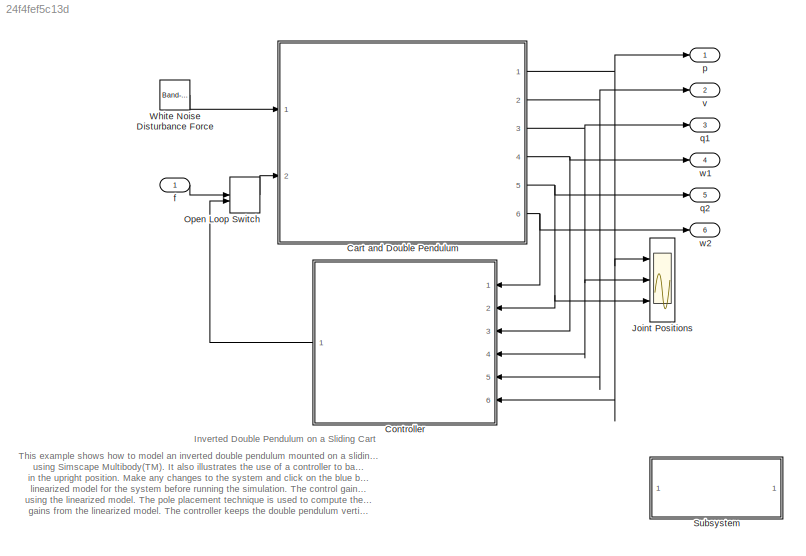
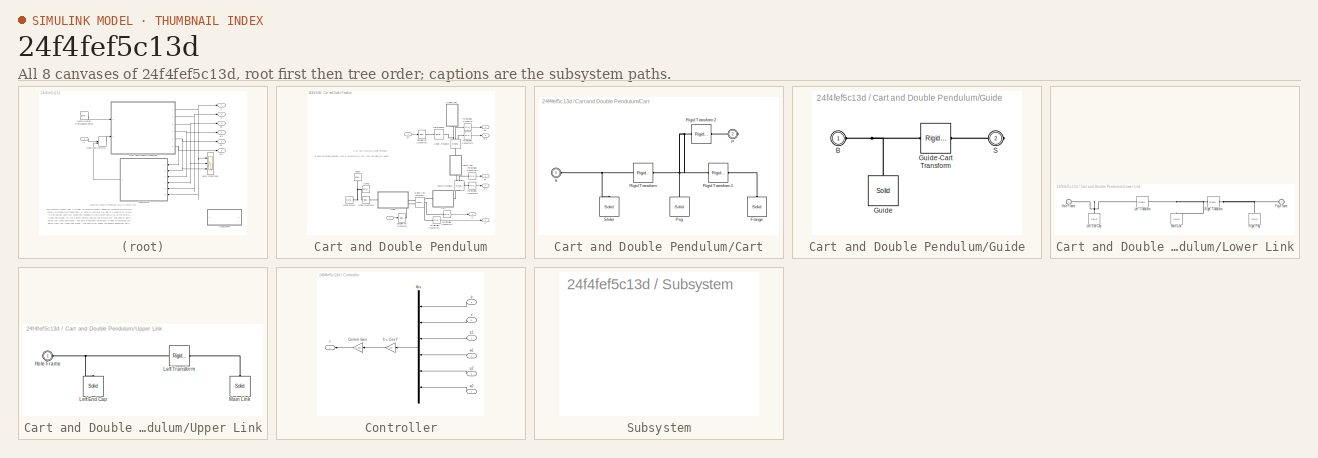
[diagram: thumbnail index - all 8 canvases of the model, root first then tree order]
MODEL slx_24f4fef5c13d
KIND model
CONFIG AbsTol = 1e-6
CONFIG EnableMultiTasking = on
CONFIG FixedStep = auto
CONFIG MaxStep = 0.01
CONFIG MinStep = auto
CONFIG RelTol = 1e-6
CONFIG SampleTimeConstraint = Unconstrained
CONFIG Solver = ode45
CONFIG SolverName = ode45
CONFIG StartTime = 0.0
CONFIG StopTime = 10
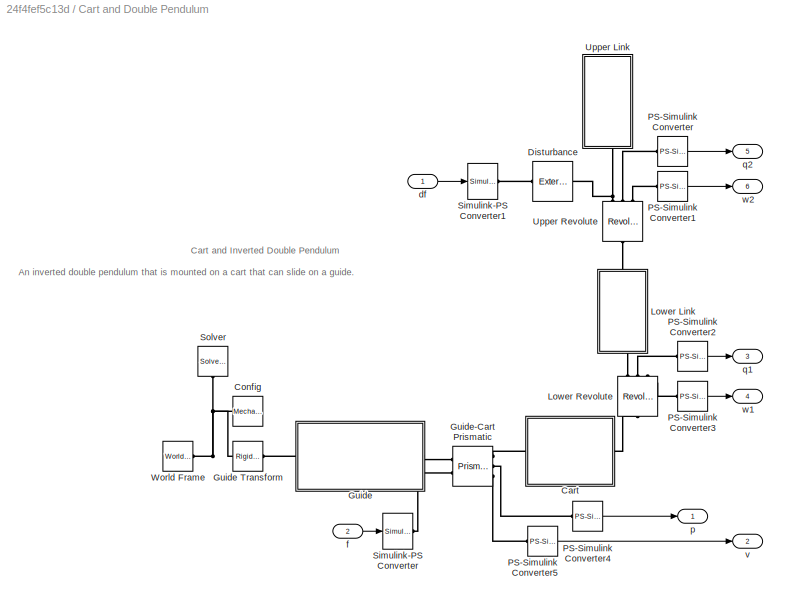
BLOCK [SubSystem] Cart and Double Pendulum
  Ports = [2, 6]
  RequestExecContextInheritance = off
BLOCK [SubSystem] Cart and Double Pendulum/Cart
  Ports = [0, 0, 0, 0, 0, 1, 1]
  RequestExecContextInheritance = off
BLOCK [Reference] Cart and Double Pendulum/Cart/Flange  REF=sm_lib/Body Elements/Solid
  Ports = [0, 0, 0, 0, 0, 0, 1]
  SourceBlock = sm_lib/Body Elements/Solid
  SourceProductBaseCode = MS
  SourceType = Cylindrical Solid
BLOCK [PMIOPort] Cart and Double Pendulum/Cart/P
  Port = 2
  Side = Right
BLOCK [Reference] Cart and Double Pendulum/Cart/Peg  REF=sm_lib/Body Elements/Solid
  Ports = [0, 0, 0, 0, 0, 0, 1]
  SourceBlock = sm_lib/Body Elements/Solid
  SourceProductBaseCode = MS
  SourceType = Cylindrical Solid
BLOCK [Reference] Cart and Double Pendulum/Cart/Rigid Transform  REF=sm_lib/Frames and
Transforms/Rigid
Transform
  Ports = [0, 0, 0, 0, 0, 1, 1]
  SourceBlock = sm_lib/Frames and\nTransforms/Rigid\nTransform
  SourceProductBaseCode = MS
  SourceType = Rigid\nTransform
BLOCK [Reference] Cart and Double Pendulum/Cart/Rigid Transform1  REF=sm_lib/Frames and
Transforms/Rigid
Transform
  Ports = [0, 0, 0, 0, 0, 1, 1]
  SourceBlock = sm_lib/Frames and\nTransforms/Rigid\nTransform
  SourceProductBaseCode = MS
  SourceType = Rigid\nTransform
BLOCK [Reference] Cart and Double Pendulum/Cart/Rigid Transform2  REF=sm_lib/Frames and
Transforms/Rigid
Transform
  Ports = [0, 0, 0, 0, 0, 1, 1]
  SourceBlock = sm_lib/Frames and\nTransforms/Rigid\nTransform
  SourceProductBaseCode = MS
  SourceType = Rigid\nTransform
BLOCK [PMIOPort] Cart and Double Pendulum/Cart/S
  Side = Left
BLOCK [Reference] Cart and Double Pendulum/Cart/Slider  REF=sm_lib/Body Elements/Solid
  Ports = [0, 0, 0, 0, 0, 0, 1]
  SourceBlock = sm_lib/Body Elements/Solid
  SourceProductBaseCode = MS
  SourceType = Extruded Solid
BLOCK [Reference] Cart and Double Pendulum/Config  REF=sm_lib/Utilities/Mechanism
Configuration
  Ports = [0, 0, 0, 0, 0, 0, 1]
  SourceBlock = sm_lib/Utilities/Mechanism\nConfiguration
  SourceProductBaseCode = MS
  SourceType = Mechanism\nConfiguration
BLOCK [Reference] Cart and Double Pendulum/Disturbance  REF=sm_lib/Forces and
Torques/External Force
and Torque
  Ports = [0, 0, 0, 0, 0, 1, 1]
  SourceBlock = sm_lib/Forces and\nTorques/External Force\nand Torque
  SourceProductBaseCode = MS
  SourceType = External Force\nand Torque
BLOCK [SubSystem] Cart and Double Pendulum/Guide
  Ports = [0, 0, 0, 0, 0, 1, 1]
  RequestExecContextInheritance = off
BLOCK [Reference] Cart and Double Pendulum/Guide Transform  REF=sm_lib/Frames and
Transforms/Rigid
Transform
  Ports = [0, 0, 0, 0, 0, 1, 1]
  SourceBlock = sm_lib/Frames and\nTransforms/Rigid\nTransform
  SourceProductBaseCode = MS
  SourceType = Rigid\nTransform
BLOCK [Reference] Cart and Double Pendulum/Guide-Cart Prismatic  REF=sm_lib/Joints/Prismatic
Joint
  Ports = [0, 0, 0, 0, 0, 2, 3]
  SourceBlock = sm_lib/Joints/Prismatic\nJoint
  SourceProductBaseCode = MS
  SourceType = Prismatic\nJoint
BLOCK [PMIOPort] Cart and Double Pendulum/Guide/B
  Side = Left
BLOCK [Reference] Cart and Double Pendulum/Guide/Guide  REF=sm_lib/Body Elements/Solid
  Ports = [0, 0, 0, 0, 0, 0, 1]
  SourceBlock = sm_lib/Body Elements/Solid
  SourceProductBaseCode = MS
  SourceType = Extruded Solid
BLOCK [Reference] Cart and Double Pendulum/Guide/Guide-Cart Transform  REF=sm_lib/Frames and
Transforms/Rigid
Transform
  Ports = [0, 0, 0, 0, 0, 1, 1]
  SourceBlock = sm_lib/Frames and\nTransforms/Rigid\nTransform
  SourceProductBaseCode = MS
  SourceType = Rigid\nTransform
BLOCK [PMIOPort] Cart and Double Pendulum/Guide/S
  Port = 2
  Side = Right
BLOCK [SubSystem] Cart and Double Pendulum/Lower Link
  Ports = [0, 0, 0, 0, 0, 1, 1]
  RequestExecContextInheritance = off
BLOCK [PMIOPort] Cart and Double Pendulum/Lower Link/Hole Frame
  Side = Left
BLOCK [Reference] Cart and Double Pendulum/Lower Link/Left End Cap  REF=sm_lib/Body Elements/Solid
  Ports = [0, 0, 0, 0, 0, 0, 1]
  SourceBlock = sm_lib/Body Elements/Solid
  SourceProductBaseCode = MS
  SourceType = Extruded Solid
BLOCK [Reference] Cart and Double Pendulum/Lower Link/Left Transform  REF=sm_lib/Frames and
Transforms/Rigid
Transform
  Ports = [0, 0, 0, 0, 0, 1, 1]
  SourceBlock = sm_lib/Frames and\nTransforms/Rigid\nTransform
  SourceProductBaseCode = MS
  SourceType = Rigid\nTransform
BLOCK [Reference] Cart and Double Pendulum/Lower Link/Main Link  REF=sm_lib/Body Elements/Solid
  Ports = [0, 0, 0, 0, 0, 0, 1]
  SourceBlock = sm_lib/Body Elements/Solid
  SourceProductBaseCode = MS
  SourceType = Extruded Solid
BLOCK [PMIOPort] Cart and Double Pendulum/Lower Link/Peg Frame
  Port = 2
  Side = Right
BLOCK [Reference] Cart and Double Pendulum/Lower Link/Right Peg  REF=sm_lib/Body Elements/Solid
  Ports = [0, 0, 0, 0, 0, 0, 1]
  SourceBlock = sm_lib/Body Elements/Solid
  SourceProductBaseCode = MS
  SourceType = Cylindrical Solid
BLOCK [Reference] Cart and Double Pendulum/Lower Link/Right Transform  REF=sm_lib/Frames and
Transforms/Rigid
Transform
  Ports = [0, 0, 0, 0, 0, 1, 1]
  SourceBlock = sm_lib/Frames and\nTransforms/Rigid\nTransform
  SourceProductBaseCode = MS
  SourceType = Rigid\nTransform
BLOCK [Reference] Cart and Double Pendulum/Lower Revolute  REF=sm_lib/Joints/Revolute Joint
  Ports = [0, 0, 0, 0, 0, 1, 3]
  SourceBlock = sm_lib/Joints/Revolute Joint
  SourceProductBaseCode = MS
  SourceType = Revolute Joint
BLOCK [Reference] Cart and Double Pendulum/PS-Simulink Converter  REF=nesl_utility/PS-Simulink
Converter
  Ports = [0, 1, 0, 0, 0, 1]
  SourceBlock = nesl_utility/PS-Simulink\nConverter
  SourceProductBaseCode = PW,SS
  SourceType = PS-Simulink\nConverter
BLOCK [Reference] Cart and Double Pendulum/PS-Simulink Converter1  REF=nesl_utility/PS-Simulink
Converter
  Ports = [0, 1, 0, 0, 0, 1]
  SourceBlock = nesl_utility/PS-Simulink\nConverter
  SourceProductBaseCode = PW,SS
  SourceType = PS-Simulink\nConverter
BLOCK [Reference] Cart and Double Pendulum/PS-Simulink Converter2  REF=nesl_utility/PS-Simulink
Converter
  Ports = [0, 1, 0, 0, 0, 1]
  SourceBlock = nesl_utility/PS-Simulink\nConverter
  SourceProductBaseCode = PW,SS
  SourceType = PS-Simulink\nConverter
BLOCK [Reference] Cart and Double Pendulum/PS-Simulink Converter3  REF=nesl_utility/PS-Simulink
Converter
  Ports = [0, 1, 0, 0, 0, 1]
  SourceBlock = nesl_utility/PS-Simulink\nConverter
  SourceProductBaseCode = PW,SS
  SourceType = PS-Simulink\nConverter
BLOCK [Reference] Cart and Double Pendulum/PS-Simulink Converter4  REF=nesl_utility/PS-Simulink
Converter
  Ports = [0, 1, 0, 0, 0, 1]
  SourceBlock = nesl_utility/PS-Simulink\nConverter
  SourceProductBaseCode = PW,SS
  SourceType = PS-Simulink\nConverter
BLOCK [Reference] Cart and Double Pendulum/PS-Simulink Converter5  REF=nesl_utility/PS-Simulink
Converter
  Ports = [0, 1, 0, 0, 0, 1]
  SourceBlock = nesl_utility/PS-Simulink\nConverter
  SourceProductBaseCode = PW,SS
  SourceType = PS-Simulink\nConverter
BLOCK [Reference] Cart and Double Pendulum/Simulink-PS Converter  REF=nesl_utility/Simulink-PS
Converter
  Ports = [1, 0, 0, 0, 0, 0, 1]
  SourceBlock = nesl_utility/Simulink-PS\nConverter
  SourceProductBaseCode = PW,SS
  SourceType = Simulink-PS\nConverter
BLOCK [Reference] Cart and Double Pendulum/Simulink-PS Converter1  REF=nesl_utility/Simulink-PS
Converter
  Ports = [1, 0, 0, 0, 0, 0, 1]
  SourceBlock = nesl_utility/Simulink-PS\nConverter
  SourceProductBaseCode = PW,SS
  SourceType = Simulink-PS\nConverter
BLOCK [Reference] Cart and Double Pendulum/Solver  REF=nesl_utility/Solver
Configuration
  Ports = [0, 0, 0, 0, 0, 0, 1]
  SourceBlock = nesl_utility/Solver\nConfiguration
  SourceProductBaseCode = PW,SS
  SourceType = Solver\nConfiguration
BLOCK [SubSystem] Cart and Double Pendulum/Upper Link
  Ports = [0, 0, 0, 0, 0, 1]
  RequestExecContextInheritance = off
BLOCK [PMIOPort] Cart and Double Pendulum/Upper Link/Hole Frame
  Side = Left
BLOCK [Reference] Cart and Double Pendulum/Upper Link/Left End Cap  REF=sm_lib/Body Elements/Solid
  Ports = [0, 0, 0, 0, 0, 0, 1]
  SourceBlock = sm_lib/Body Elements/Solid
  SourceProductBaseCode = MS
  SourceType = Extruded Solid
BLOCK [Reference] Cart and Double Pendulum/Upper Link/Left Transform  REF=sm_lib/Frames and
Transforms/Rigid
Transform
  Ports = [0, 0, 0, 0, 0, 1, 1]
  SourceBlock = sm_lib/Frames and\nTransforms/Rigid\nTransform
  SourceProductBaseCode = MS
  SourceType = Rigid\nTransform
BLOCK [Reference] Cart and Double Pendulum/Upper Link/Main Link  REF=sm_lib/Body Elements/Solid
  Ports = [0, 0, 0, 0, 0, 0, 1]
  SourceBlock = sm_lib/Body Elements/Solid
  SourceProductBaseCode = MS
  SourceType = Extruded Solid
BLOCK [Reference] Cart and Double Pendulum/Upper Revolute  REF=sm_lib/Joints/Revolute Joint
  Ports = [0, 0, 0, 0, 0, 1, 3]
  SourceBlock = sm_lib/Joints/Revolute Joint
  SourceProductBaseCode = MS
  SourceType = Revolute Joint
BLOCK [Reference] Cart and Double Pendulum/World Frame  REF=sm_lib/Frames and
Transforms/World Frame
  Ports = [0, 0, 0, 0, 0, 0, 1]
  SourceBlock = sm_lib/Frames and\nTransforms/World Frame
  SourceProductBaseCode = MS
  SourceType = World Frame
BLOCK [Inport] Cart and Double Pendulum/df
BLOCK [Inport] Cart and Double Pendulum/f
  Port = 2
BLOCK [Outport] Cart and Double Pendulum/p
  VectorParamsAs1DForOutWhenUnconnected = off
BLOCK [Outport] Cart and Double Pendulum/q1
  Port = 3
  VectorParamsAs1DForOutWhenUnconnected = off
BLOCK [Outport] Cart and Double Pendulum/q2
  Port = 5
  VectorParamsAs1DForOutWhenUnconnected = off
BLOCK [Outport] Cart and Double Pendulum/v
  Port = 2
  VectorParamsAs1DForOutWhenUnconnected = off
BLOCK [Outport] Cart and Double Pendulum/w1
  Port = 4
  VectorParamsAs1DForOutWhenUnconnected = off
BLOCK [Outport] Cart and Double Pendulum/w2
  Port = 6
  VectorParamsAs1DForOutWhenUnconnected = off
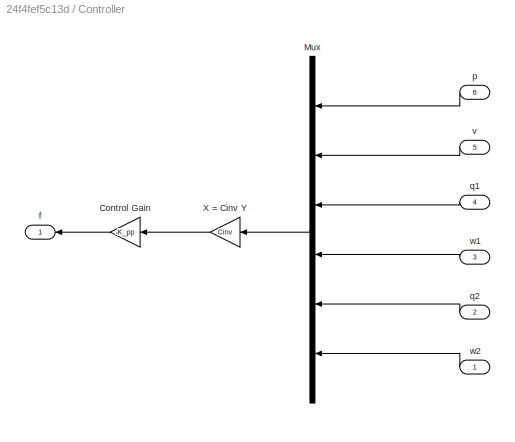
BLOCK [SubSystem] Controller
  Ports = [6, 1]
  RequestExecContextInheritance = off
BLOCK [Gain] Controller/Control Gain
  Gain = -K_pp
  Multiplication = Matrix(K*u)
BLOCK [Mux] Controller/Mux
  DisplayOption = bar
  Inputs = 6
  Ports = [6, 1]
BLOCK [Gain] Controller/X = Cinv Y
  Gain = Cinv
  Multiplication = Matrix(K*u)
BLOCK [Outport] Controller/f
  VectorParamsAs1DForOutWhenUnconnected = off
BLOCK [Inport] Controller/p
  Port = 6
BLOCK [Inport] Controller/q1
  Port = 4
BLOCK [Inport] Controller/q2
  Port = 2
BLOCK [Inport] Controller/v
  Port = 5
BLOCK [Inport] Controller/w1
  Port = 3
BLOCK [Inport] Controller/w2
BLOCK [Scope] Joint Positions
  Floating = off
  NumInputPorts = 3
  Ports = [3]
  ScopeSpecificationString = Simulink.scopes.TimeScopeBlockCfg('CurrentConfiguration', extmgr.ConfigurationSet(extmgr.Configuration('Core','General UI',true,'FigureColor',[0.941176470588235 0.941176470588235 0.941176470588235]),extmgr.Configuration('Core','Source UI',true),extmgr.Configuration('Sources','WiredSimulink',true,'DataLoggingSaveFormat','StructureWithTime','DataLoggingDecimation','1','DataLoggingDecimateData',true)...<+3685ch>
BLOCK [ManualSwitch] Open Loop Switch
  CurrentSetting = 0
BLOCK [SubSystem] Subsystem
  OpenFcn = sm_cart_dpen_linearize();
  Ports = []
  RequestExecContextInheritance = off
BLOCK [Reference] White Noise Disturbance Force  REF=simulink/Sources/Band-Limited
White Noise
  Ports = [0, 1]
  SourceBlock = simulink/Sources/Band-Limited\nWhite Noise
  SourceProductBaseCode = SL
  SourceType = Band-Limited White Noise.
BLOCK [Inport] f
BLOCK [Outport] p
  VectorParamsAs1DForOutWhenUnconnected = off
BLOCK [Outport] q1
  Port = 3
  VectorParamsAs1DForOutWhenUnconnected = off
BLOCK [Outport] q2
  Port = 5
  VectorParamsAs1DForOutWhenUnconnected = off
BLOCK [Outport] v
  Port = 2
  VectorParamsAs1DForOutWhenUnconnected = off
BLOCK [Outport] w1
  Port = 4
  VectorParamsAs1DForOutWhenUnconnected = off
BLOCK [Outport] w2
  Port = 6
  VectorParamsAs1DForOutWhenUnconnected = off
ANNOTATION (root): Inverted Double Pendulum on a Sliding Cart
ANNOTATION (root): This example shows how to model an inverted double pendulum mounted on a sliding cart using Simscape Multibody(TM). It also illustrates the use of a controller to balance the pendulum in the upright position. Make any changes to the system and click on the blue box to generate linearized model for the system before running the simulation. The control gains are computed using the linearized model. ...<+274ch>
ANNOTATION Cart and Double Pendulum: An inverted double pendulum that is mounted on a cart that can slide on a guide.
ANNOTATION Cart and Double Pendulum: Cart and Inverted Double Pendulum
LINE Cart and Double Pendulum/PS-Simulink Converter1:1 -> Cart and Double Pendulum/w2:1
LINE Cart and Double Pendulum/PS-Simulink Converter2:1 -> Cart and Double Pendulum/q1:1
LINE Cart and Double Pendulum/PS-Simulink Converter3:1 -> Cart and Double Pendulum/w1:1
LINE Cart and Double Pendulum/PS-Simulink Converter4:1 -> Cart and Double Pendulum/p:1
LINE Cart and Double Pendulum/PS-Simulink Converter5:1 -> Cart and Double Pendulum/v:1
LINE Cart and Double Pendulum/PS-Simulink Converter:1 -> Cart and Double Pendulum/q2:1
LINE Cart and Double Pendulum/df:1 -> Cart and Double Pendulum/Simulink-PS Converter1:1
LINE Cart and Double Pendulum/f:1 -> Cart and Double Pendulum/Simulink-PS Converter:1
NET Cart and Double Pendulum:1 -> Controller:6, Joint Positions:1, p:1
NET Cart and Double Pendulum:2 -> Controller:5, v:1
NET Cart and Double Pendulum:3 -> Controller:4, Joint Positions:2, q1:1
NET Cart and Double Pendulum:4 -> Controller:3, w1:1
NET Cart and Double Pendulum:5 -> Controller:2, Joint Positions:3, q2:1
NET Cart and Double Pendulum:6 -> Controller:1, w2:1
LINE Controller/Control Gain:1 -> Controller/f:1
LINE Controller/Mux:1 -> Controller/X = Cinv Y:1
LINE Controller/X = Cinv Y:1 -> Controller/Control Gain:1
LINE Controller/p:1 -> Controller/Mux:1
LINE Controller/q1:1 -> Controller/Mux:3
LINE Controller/q2:1 -> Controller/Mux:5
LINE Controller/v:1 -> Controller/Mux:2
LINE Controller/w1:1 -> Controller/Mux:4
LINE Controller/w2:1 -> Controller/Mux:6
LINE Controller:1 -> Open Loop Switch:2
LINE Open Loop Switch:1 -> Cart and Double Pendulum:2
LINE White Noise Disturbance Force:1 -> Cart and Double Pendulum:1
LINE f:1 -> Open Loop Switch:1
PLINE Cart and Double Pendulum/Cart/Flange:RConn1 -- Cart and Double Pendulum/Cart/Rigid Transform1:RConn1
PLINE Cart and Double Pendulum/Cart/P:RConn1 -- Cart and Double Pendulum/Cart/Rigid Transform2:RConn1
PNET net1: Cart and Double Pendulum/Cart/Peg:RConn1 -- Cart and Double Pendulum/Cart/Rigid Transform1:LConn1 -- Cart and Double Pendulum/Cart/Rigid Transform2:LConn1 -- Cart and Double Pendulum/Cart/Rigid Transform:RConn1
PNET net2: Cart and Double Pendulum/Cart/Rigid Transform:LConn1 -- Cart and Double Pendulum/Cart/S:RConn1 -- Cart and Double Pendulum/Cart/Slider:RConn1
PLINE Cart and Double Pendulum/Cart:LConn1 -- Cart and Double Pendulum/Guide-Cart Prismatic:RConn1
PLINE Cart and Double Pendulum/Cart:RConn1 -- Cart and Double Pendulum/Lower Revolute:LConn1
PNET net3: Cart and Double Pendulum/Config:RConn1 -- Cart and Double Pendulum/Guide Transform:LConn1 -- Cart and Double Pendulum/Solver:RConn1 -- Cart and Double Pendulum/World Frame:RConn1
PLINE Cart and Double Pendulum/Disturbance:LConn1 -- Cart and Double Pendulum/Simulink-PS Converter1:RConn1
PNET net4: Cart and Double Pendulum/Disturbance:RConn1 -- Cart and Double Pendulum/Upper Link:LConn1 -- Cart and Double Pendulum/Upper Revolute:RConn1
PLINE Cart and Double Pendulum/Guide Transform:RConn1 -- Cart and Double Pendulum/Guide:LConn1
PLINE Cart and Double Pendulum/Guide-Cart Prismatic:LConn1 -- Cart and Double Pendulum/Guide:RConn1
PLINE Cart and Double Pendulum/Guide-Cart Prismatic:LConn2 -- Cart and Double Pendulum/Simulink-PS Converter:RConn1
PLINE Cart and Double Pendulum/Guide-Cart Prismatic:RConn2 -- Cart and Double Pendulum/PS-Simulink Converter4:LConn1
PLINE Cart and Double Pendulum/Guide-Cart Prismatic:RConn3 -- Cart and Double Pendulum/PS-Simulink Converter5:LConn1
PNET net5: Cart and Double Pendulum/Guide/B:RConn1 -- Cart and Double Pendulum/Guide/Guide-Cart Transform:LConn1 -- Cart and Double Pendulum/Guide/Guide:RConn1
PLINE Cart and Double Pendulum/Guide/Guide-Cart Transform:RConn1 -- Cart and Double Pendulum/Guide/S:RConn1
PNET net6: Cart and Double Pendulum/Lower Link/Hole Frame:RConn1 -- Cart and Double Pendulum/Lower Link/Left End Cap:RConn1 -- Cart and Double Pendulum/Lower Link/Left Transform:RConn1
PNET net7: Cart and Double Pendulum/Lower Link/Left Transform:LConn1 -- Cart and Double Pendulum/Lower Link/Main Link:RConn1 -- Cart and Double Pendulum/Lower Link/Right Transform:LConn1
PNET net8: Cart and Double Pendulum/Lower Link/Peg Frame:RConn1 -- Cart and Double Pendulum/Lower Link/Right Peg:RConn1 -- Cart and Double Pendulum/Lower Link/Right Transform:RConn1
PLINE Cart and Double Pendulum/Lower Link:LConn1 -- Cart and Double Pendulum/Lower Revolute:RConn1
PLINE Cart and Double Pendulum/Lower Link:RConn1 -- Cart and Double Pendulum/Upper Revolute:LConn1
PLINE Cart and Double Pendulum/Lower Revolute:RConn2 -- Cart and Double Pendulum/PS-Simulink Converter2:LConn1
PLINE Cart and Double Pendulum/Lower Revolute:RConn3 -- Cart and Double Pendulum/PS-Simulink Converter3:LConn1
PLINE Cart and Double Pendulum/PS-Simulink Converter1:LConn1 -- Cart and Double Pendulum/Upper Revolute:RConn3
PLINE Cart and Double Pendulum/PS-Simulink Converter:LConn1 -- Cart and Double Pendulum/Upper Revolute:RConn2
PNET net9: Cart and Double Pendulum/Upper Link/Hole Frame:RConn1 -- Cart and Double Pendulum/Upper Link/Left End Cap:RConn1 -- Cart and Double Pendulum/Upper Link/Left Transform:RConn1
PLINE Cart and Double Pendulum/Upper Link/Left Transform:LConn1 -- Cart and Double Pendulum/Upper Link/Main Link:RConn1
note: NET lines group one-source signal fan-out (src -> all destinations, sorted); 1:1 wires keep LINE; PNET lines group multi-terminal physical nets as a canonical sorted terminal list (undirected conserving connections); 2-terminal nets keep the pairwise PLINE form
